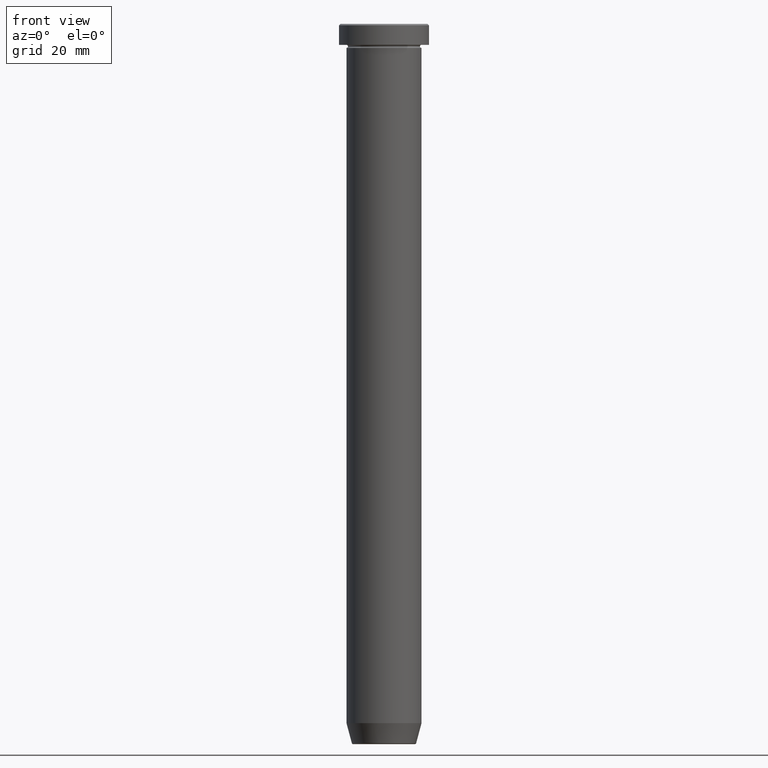
[diagram: clean part render]
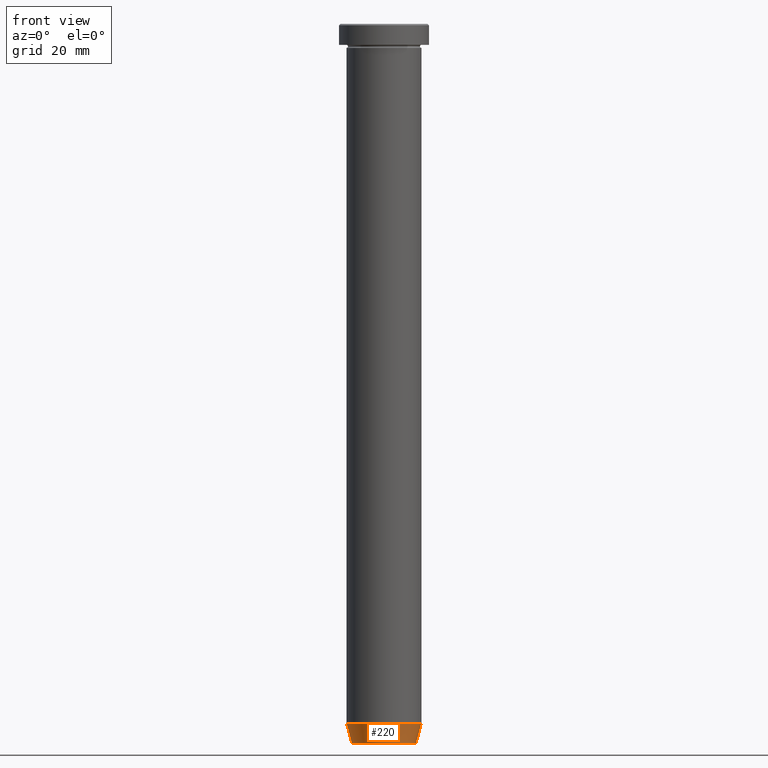
[diagram: same view with one face highlighted and labeled with its STEP entity id]
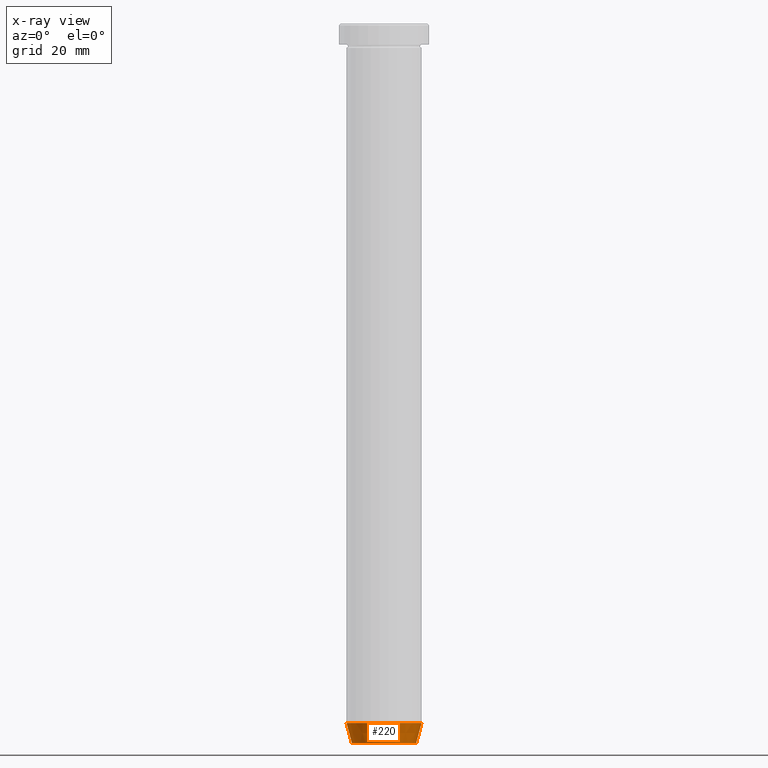
[diagram: x-ray of the same camera — body ghosted, the highlighted face saturated]
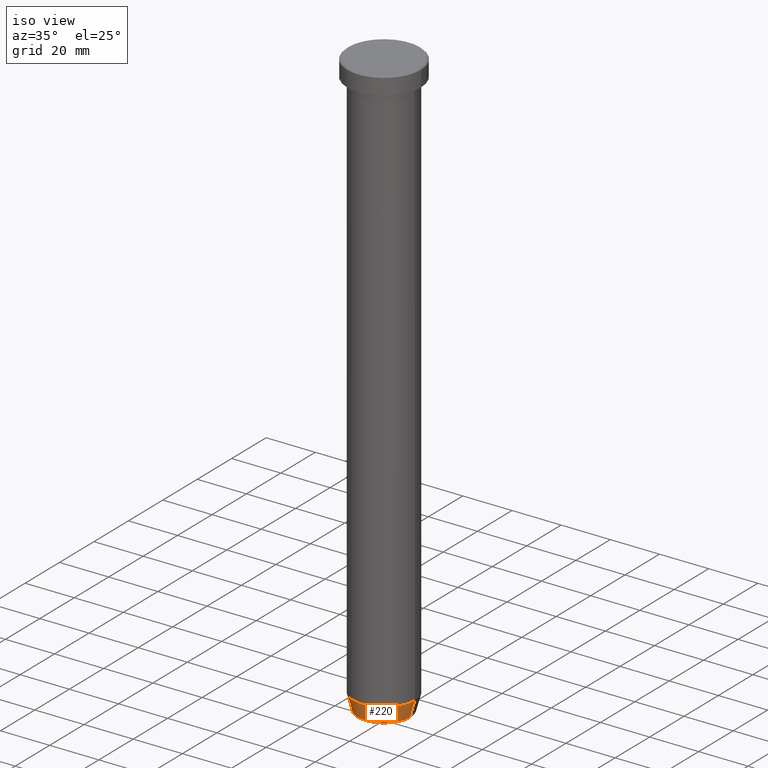
[diagram: same view with one face highlighted and labeled with its STEP entity id]
A machine part, front view. The second image highlights one B-rep face of the part: STEP entity #220.
The next image is the same camera in x-ray: the body ghosted, the highlighted face saturated — about 0% of this face is hidden behind the body in this view.
A second angle (iso view) of the same face is appended — the face is thin or edge-on in the first view.
In plain terms, the highlighted conical surface has half-angle 15 deg.
Its self-contained STEP definition (entity closure, byte-faithful):
#27 = DIRECTION ( 'NONE',  ( -0.2588190451025209060, 3.169619151431766790E-17, 0.9659258262890682012 ) ) ;
#33 = EDGE_LOOP ( 'NONE', ( #462, #525, #364, #400 ) ) ;
#44 = CARTESIAN_POINT ( 'NONE',  ( 12.50000000000000000, 0.000000000000000000, -232.9999999999999716 ) ) ;
#81 = DIRECTION ( 'NONE',  ( 1.000000000000000000, 0.000000000000000000, 0.000000000000000000 ) ) ;
#96 = EDGE_CURVE ( 'NONE', #282, #192, #296, .T. ) ;
#101 = CARTESIAN_POINT ( 'NONE',  ( -10.72365507213718949, 1.422038742429750318E-15, -239.6294095225512422 ) ) ;
#151 = VECTOR ( 'NONE', #573, 1000.000000000000000 ) ;
#161 = CARTESIAN_POINT ( 'NONE',  ( 10.62435565298213902, 0.000000000000000000, -240.0000000000000000 ) ) ;
#171 = CARTESIAN_POINT ( 'NONE',  ( 10.72365507213718949, 0.000000000000000000, -239.6294095225512422 ) ) ;
#192 = VERTEX_POINT ( 'NONE', #349 ) ;
#196 = CONICAL_SURFACE ( 'NONE', #258, 10.62435565298213902, 0.2617993877991495744 ) ;
#202 = DIRECTION ( 'NONE',  ( -0.000000000000000000, -0.000000000000000000, 1.000000000000000000 ) ) ;
#220 = ADVANCED_FACE ( 'NONE', ( #303 ), #196, .T. ) ;
#224 = CIRCLE ( 'NONE', #237, 10.72365507213718949 ) ;
#233 = DIRECTION ( 'NONE',  ( -0.000000000000000000, -0.000000000000000000, 1.000000000000000000 ) ) ;
#237 = AXIS2_PLACEMENT_3D ( 'NONE', #596, #233, #281 ) ;
#246 = CARTESIAN_POINT ( 'NONE',  ( -10.62435565298213902, 1.301108314342766318E-15, -240.0000000000000000 ) ) ;
#258 = AXIS2_PLACEMENT_3D ( 'NONE', #588, #271, #81 ) ;
#271 = DIRECTION ( 'NONE',  ( -0.000000000000000000, -0.000000000000000000, 1.000000000000000000 ) ) ;
#281 = DIRECTION ( 'NONE',  ( -1.000000000000000000, 0.000000000000000000, 0.000000000000000000 ) ) ;
#282 = VERTEX_POINT ( 'NONE', #101 ) ;
#296 = LINE ( 'NONE', #246, #593 ) ;
#303 = FACE_OUTER_BOUND ( 'NONE', #33, .T. ) ;
#336 = DIRECTION ( 'NONE',  ( 1.000000000000000000, 0.000000000000000000, 0.000000000000000000 ) ) ;
#349 = CARTESIAN_POINT ( 'NONE',  ( -12.50000000000000000, 1.530808498934191521E-15, -232.9999999999999716 ) ) ;
#350 = AXIS2_PLACEMENT_3D ( 'NONE', #526, #202, #336 ) ;
#359 = CIRCLE ( 'NONE', #350, 12.50000000000000000 ) ;
#360 = VERTEX_POINT ( 'NONE', #44 ) ;
#364 = ORIENTED_EDGE ( 'NONE', *, *, #384, .T. ) ;
#380 = EDGE_CURVE ( 'NONE', #192, #360, #359, .T. ) ;
#384 = EDGE_CURVE ( 'NONE', #458, #360, #568, .T. ) ;
#400 = ORIENTED_EDGE ( 'NONE', *, *, #380, .F. ) ;
#458 = VERTEX_POINT ( 'NONE', #171 ) ;
#462 = ORIENTED_EDGE ( 'NONE', *, *, #96, .F. ) ;
#525 = ORIENTED_EDGE ( 'NONE', *, *, #576, .T. ) ;
#526 = CARTESIAN_POINT ( 'NONE',  ( 0.000000000000000000, 0.000000000000000000, -232.9999999999999716 ) ) ;
#568 = LINE ( 'NONE', #161, #151 ) ;
#573 = DIRECTION ( 'NONE',  ( 0.2588190451025209060, 0.000000000000000000, 0.9659258262890682012 ) ) ;
#576 = EDGE_CURVE ( 'NONE', #282, #458, #224, .T. ) ;
#588 = CARTESIAN_POINT ( 'NONE',  ( 0.000000000000000000, 0.000000000000000000, -240.0000000000000000 ) ) ;
#593 = VECTOR ( 'NONE', #27, 1000.000000000000000 ) ;
#596 = CARTESIAN_POINT ( 'NONE',  ( 0.000000000000000000, 0.000000000000000000, -239.6294095225512422 ) ) ;